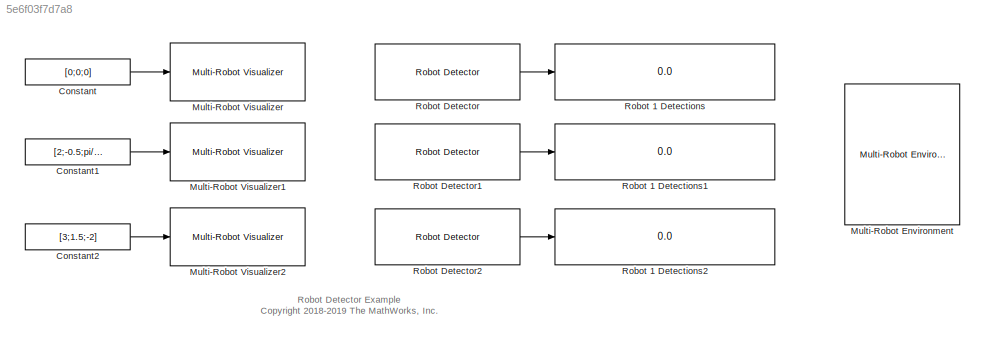
MODEL slx_5e6f03f7d7a8
KIND model
CONFIG AbsTol = auto
CONFIG EnableMultiTasking = off
CONFIG FixedStep = auto
CONFIG MaxStep = auto
CONFIG MinStep = auto
CONFIG RelTol = 1e-3
CONFIG SampleTimeConstraint = Unconstrained
CONFIG Solver = VariableStepAuto
CONFIG SolverName = VariableStepAuto
CONFIG StartTime = 0.0
CONFIG StopTime = 10.0
BLOCK [Constant] Constant
  Value = [0;0;0]
BLOCK [Constant] Constant1
  Value = [2;-0.5;pi/2]
BLOCK [Constant] Constant2
  Value = [3;1.5;-2]
BLOCK [Reference] Multi-Robot Environment  REF=mobileRoboticsLib/Environments/Multi-Robot Environment
  Ports = []
  SourceBlock = mobileRoboticsLib/Environments/Multi-Robot Environment
  SourceProductName = Mobile Robotics Simulation Toolbox
  SourceType = Multi-Robot Environment
BLOCK [Reference] Multi-Robot Visualizer  REF=mobileRoboticsLib/Environments/Multi-Robot Visualizer
  Ports = [1]
  SourceBlock = mobileRoboticsLib/Environments/Multi-Robot Visualizer
  SourceProductName = Mobile Robotics Simulation Toolbox
  SourceType = Multi-Robot Visualizer
BLOCK [Reference] Multi-Robot Visualizer1  REF=mobileRoboticsLib/Environments/Multi-Robot Visualizer
  Ports = [1]
  SourceBlock = mobileRoboticsLib/Environments/Multi-Robot Visualizer
  SourceProductName = Mobile Robotics Simulation Toolbox
  SourceType = Multi-Robot Visualizer
BLOCK [Reference] Multi-Robot Visualizer2  REF=mobileRoboticsLib/Environments/Multi-Robot Visualizer
  Ports = [1]
  SourceBlock = mobileRoboticsLib/Environments/Multi-Robot Visualizer
  SourceProductName = Mobile Robotics Simulation Toolbox
  SourceType = Multi-Robot Visualizer
BLOCK [Display] Robot 1 Detections
  Decimation = 1
  Ports = [1]
BLOCK [Display] Robot 1 Detections1
  Decimation = 1
  Ports = [1]
BLOCK [Display] Robot 1 Detections2
  Decimation = 1
  Ports = [1]
BLOCK [Reference] Robot Detector  REF=mobileRoboticsLib/Environments/Robot Detector
  Ports = [0, 1]
  SourceBlock = mobileRoboticsLib/Environments/Robot Detector
  SourceProductName = Mobile Robotics Simulation Toolbox
  SourceType = Robot Detector
BLOCK [Reference] Robot Detector1  REF=mobileRoboticsLib/Environments/Robot Detector
  Ports = [0, 1]
  SourceBlock = mobileRoboticsLib/Environments/Robot Detector
  SourceProductName = Mobile Robotics Simulation Toolbox
  SourceType = Robot Detector
BLOCK [Reference] Robot Detector2  REF=mobileRoboticsLib/Environments/Robot Detector
  Ports = [0, 1]
  SourceBlock = mobileRoboticsLib/Environments/Robot Detector
  SourceProductName = Mobile Robotics Simulation Toolbox
  SourceType = Robot Detector
ANNOTATION (root): Robot Detector Example <copyright redacted>
LINE Constant1:1 -> Multi-Robot Visualizer1:1
LINE Constant2:1 -> Multi-Robot Visualizer2:1
LINE Constant:1 -> Multi-Robot Visualizer:1
LINE Robot Detector1:1 -> Robot 1 Detections1:1
LINE Robot Detector2:1 -> Robot 1 Detections2:1
LINE Robot Detector:1 -> Robot 1 Detections:1
